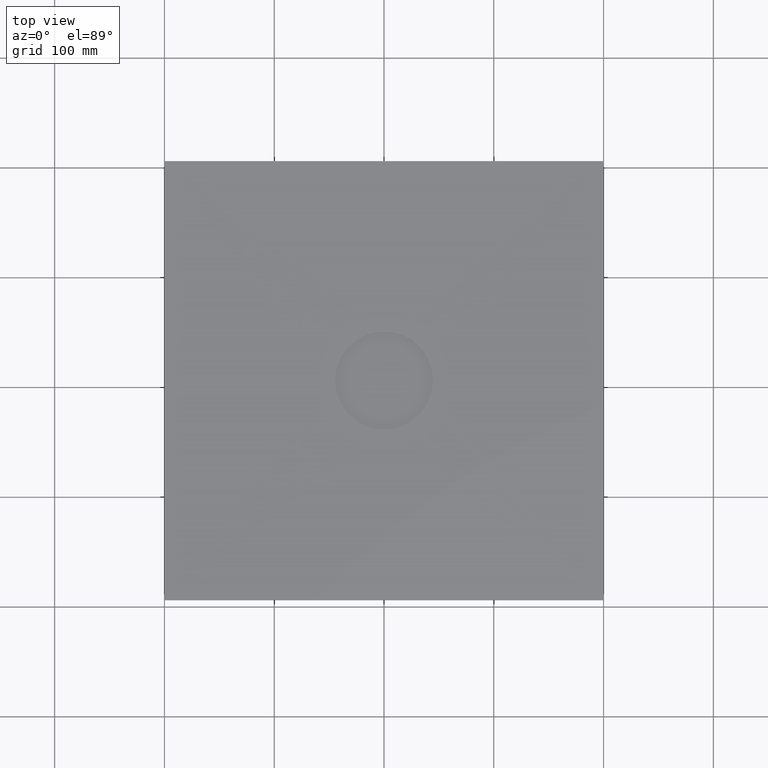
[diagram: clean part render]
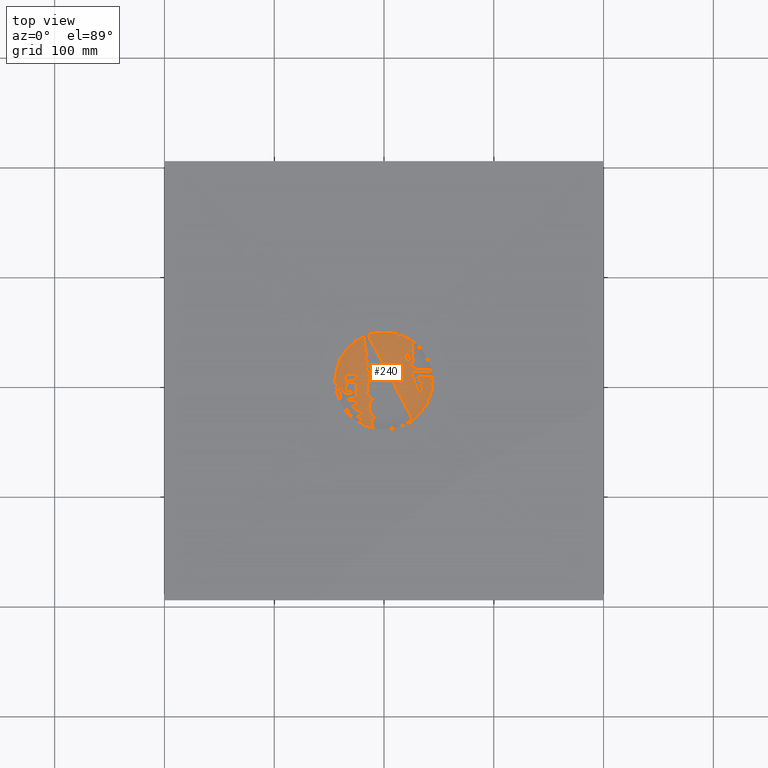
[diagram: same view with one face highlighted and labeled with its STEP entity id]
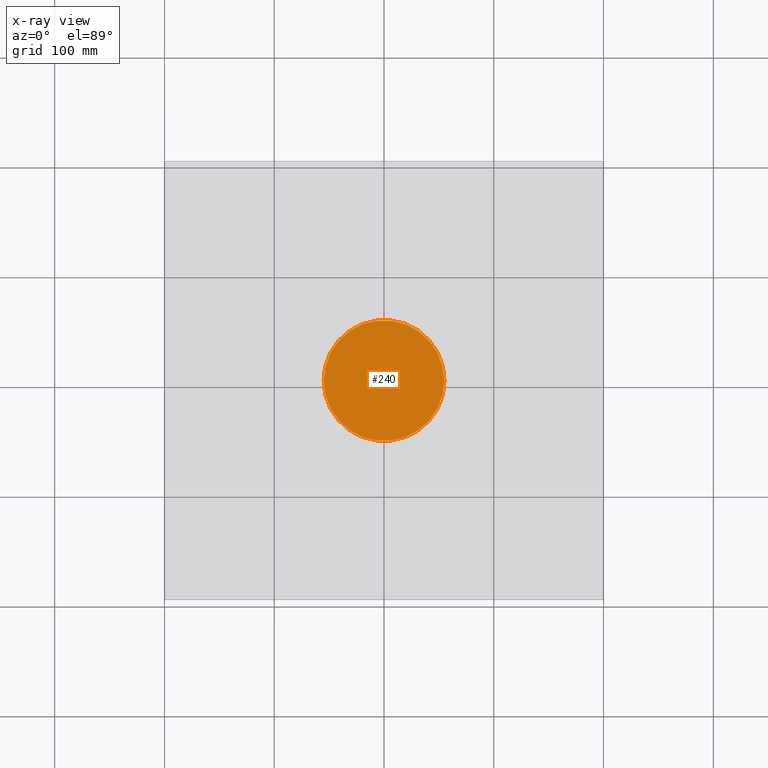
[diagram: x-ray of the same camera — body ghosted, the highlighted face saturated]
A machine part, top view. The second image highlights one B-rep face of the part: STEP entity #240.
The next image is the same camera in x-ray: the body ghosted, the highlighted face saturated — about 0% of this face is hidden behind the body in this view.
In plain terms, the highlighted planar face has unit normal (0, 0, 1).
Its self-contained STEP definition (entity closure, byte-faithful):
#28=PLANE('',#286);
#42=FACE_OUTER_BOUND('',#60,.T.);
#60=EDGE_LOOP('',(#209,#210));
#106=CIRCLE('',#281,55.);
#107=CIRCLE('',#283,55.);
#126=VERTEX_POINT('',#412);
#128=VERTEX_POINT('',#416);
#154=EDGE_CURVE('',#126,#128,#106,.F.);
#155=EDGE_CURVE('',#128,#126,#107,.F.);
#209=ORIENTED_EDGE('',*,*,#155,.T.);
#210=ORIENTED_EDGE('',*,*,#154,.T.);
#240=ADVANCED_FACE('',(#42),#28,.T.);
#281=AXIS2_PLACEMENT_3D('',#418,#341,#342);
#283=AXIS2_PLACEMENT_3D('',#420,#345,#346);
#286=AXIS2_PLACEMENT_3D('',#423,#351,#352);
#341=DIRECTION('center_axis',(-3.1465766449588E-15,0.,-1.));
#342=DIRECTION('ref_axis',(-1.,1.61554457443259E-15,3.04518315325757E-15));
#345=DIRECTION('center_axis',(-3.1465766449588E-15,0.,-1.));
#346=DIRECTION('ref_axis',(-1.,1.61554457443259E-15,3.04518315325757E-15));
#351=DIRECTION('center_axis',(3.1465766449588E-15,0.,1.));
#352=DIRECTION('ref_axis',(0.,-1.,0.));
#412=CARTESIAN_POINT('',(-55.0000000000023,3.23613988551926E-13,-219.999999999997));
#416=CARTESIAN_POINT('',(54.9999999999976,-1.67401465322631E-13,-219.999999999997));
#418=CARTESIAN_POINT('Origin',(-2.35879704835069E-12,-7.18109563335285E-14,
-219.999999999997));
#420=CARTESIAN_POINT('Origin',(-2.35879704835069E-12,-7.18109563335285E-14,
-219.999999999997));
#423=CARTESIAN_POINT('Origin',(-44.4500000000023,0.,-219.999999999997));